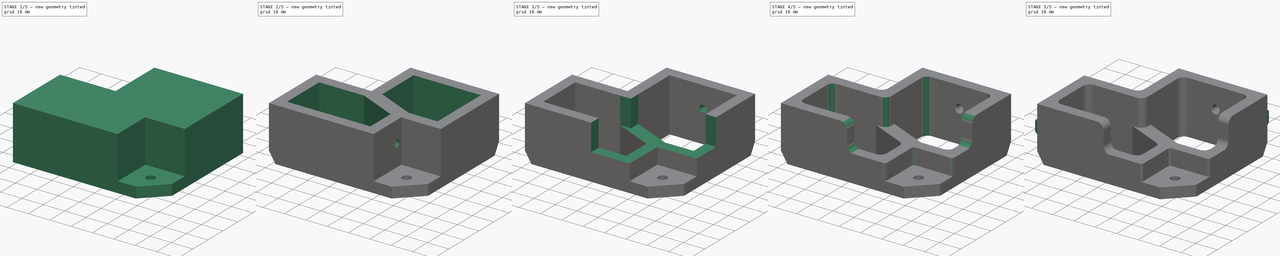
[diagram: build sequence overview — one tinted view per stage of 5, left to right]
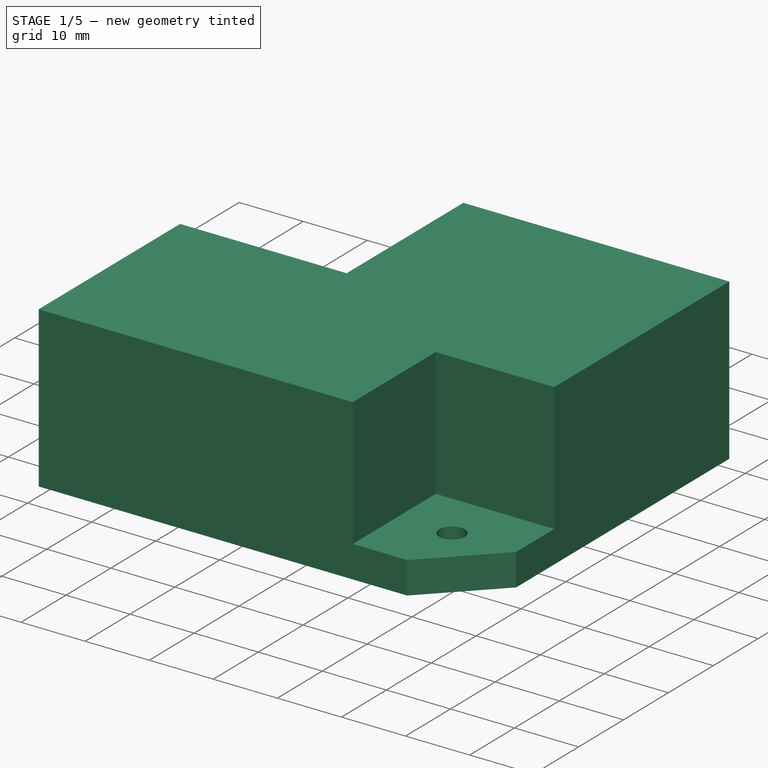
[diagram: stage 1 of 5 — iso view after this stage's code; geometry added in this stage tinted green]
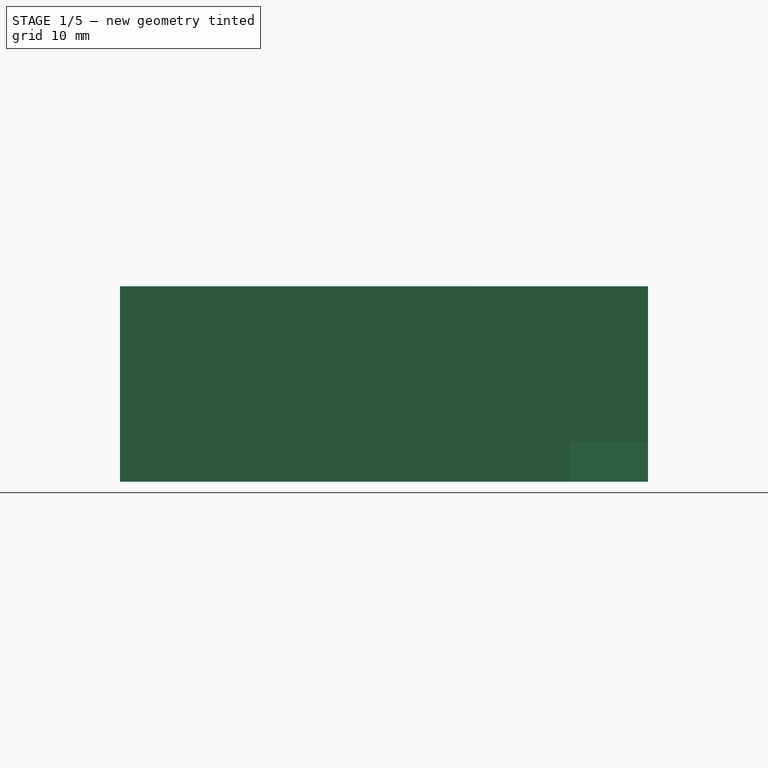
[diagram: stage 1 of 5 — front view after this stage's code; geometry added in this stage tinted green]
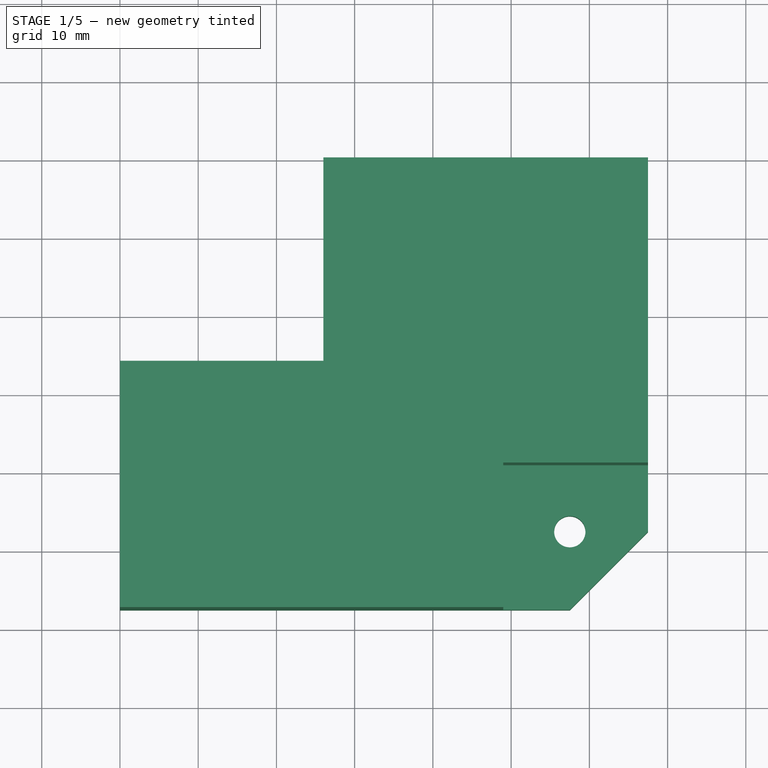
[diagram: stage 1 of 5 — top view after this stage's code; geometry added in this stage tinted green]
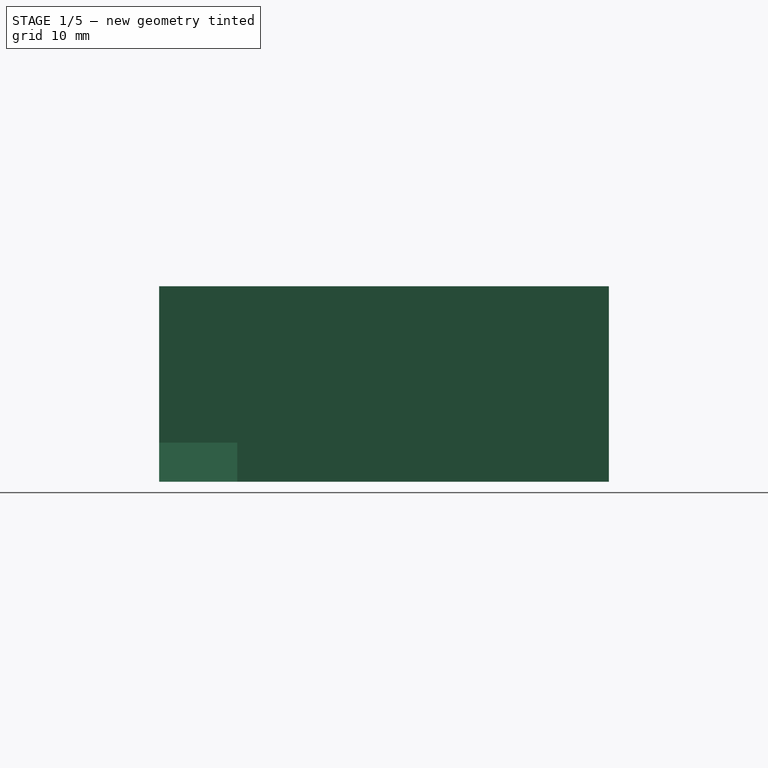
[diagram: stage 1 of 5 — right view after this stage's code; geometry added in this stage tinted green]
FCSTD DOCUMENT  (FreeCAD 0.19R24366 (Git))
Label: bed-fan-mounter-2020-250
License: All rights reserved
LicenseURL: http://en.wikipedia.org/wiki/All_rights_reserved
objects: Sketcher::SketchObject×11, PartDesign::Pocket×8, PartDesign::Pad×3, PartDesign::Chamfer×3, PartDesign::Fillet×3, PartDesign::Body×1
note: 46 computed .brp shape members not serialized (recipe doc carries the construction recipe); baked Part::Feature solids carry a one-line shape summary decoded from their .brp

FEATURE [Sketcher::SketchObject] Sketch
  FullyConstrained = true
  MapMode = 5
  Support = -> [XY_Plane]
  sketch-geometry (7):
    g0: LineSegment StartX=0 StartY=-26 StartZ=0 EndX=26 EndY=-26 EndZ=0
    g1: LineSegment StartX=26 StartY=-26 StartZ=0 EndX=26 EndY=0 EndZ=0
    g2: LineSegment StartX=26 StartY=0 StartZ=0 EndX=67.5 EndY=0 EndZ=0
    g3: LineSegment StartX=67.5 StartY=0 StartZ=0 EndX=67.5 EndY=-57.5 EndZ=0
    g4: LineSegment StartX=67.5 StartY=-57.5 StartZ=0 EndX=0 EndY=-57.5 EndZ=0
    g5: LineSegment StartX=0 StartY=-57.5 StartZ=0 EndX=0 EndY=-26 EndZ=0
    g6: Circle CenterX=57.5 CenterY=-47.5 CenterZ=0 NormalX=0 NormalY=0 NormalZ=1 AngleXU=0 Radius=2
  constraints (21):
    c: PointOnObject(g0,g-2)
    c: Horizontal(g0)
    c: Coincident(g0,g1)
    c: PointOnObject(g1,g-1)
    c: Vertical(g1)
    c: Coincident(g1,g2)
    c: PointOnObject(g2,g-1)
    c: Coincident(g2,g3)
    c: Vertical(g3)
    c: Coincident(g3,g4)
    c: PointOnObject(g4,g-2)
    c: Horizontal(g4)
    c: Coincident(g4,g5)
    c: Coincident(g5,g0)
    c: DistanceX(g0,g0) = 26
    c: DistanceY(g1,g1) = 26
    c: DistanceX(g-1,g6) = 57.5
    c: DistanceY(g6,g-1) = 47.5
    c: Radius(g6) = 2
    c: DistanceX(g6,g3) = 10
    c: DistanceY(g3,g6) = 10
FEATURE [PartDesign::Pad] Pad
  Direction = (1,1,1)
  Length = 25
  Length2 = 100
  Profile = -> Sketch
  Type = 0
FEATURE [Sketcher::SketchObject] Sketch001
  ExternalGeometry = -> [Pad]
  FullyConstrained = true
  MapMode = 5
  Placement = pos=(0,0,25) rot=(0,0,1;0rad)
  Support = -> [Pad]
  sketch-geometry (4):
    g0: LineSegment StartX=67.5 StartY=-57.5 StartZ=0 EndX=49 EndY=-57.5 EndZ=0
    g1: LineSegment StartX=49 StartY=-57.5 StartZ=0 EndX=49 EndY=-39 EndZ=0
    g2: LineSegment StartX=49 StartY=-39 StartZ=0 EndX=67.5 EndY=-39 EndZ=0
    g3: LineSegment StartX=67.5 StartY=-39 StartZ=0 EndX=67.5 EndY=-57.5 EndZ=0
  constraints (11):
    c: Coincident(g0,g1)
    c: Coincident(g1,g2)
    c: Coincident(g2,g3)
    c: Coincident(g3,g0)
    c: Horizontal(g0)
    c: Horizontal(g2)
    c: Vertical(g1)
    c: Vertical(g3)
    c: Coincident(g0,g-3)
    c: DistanceY(g-4,g1) = 8.5
    c: DistanceX(g1,g-4) = 8.5
FEATURE [PartDesign::Pocket] Pocket
  BaseFeature = -> Pad
  Length = 20
  Length2 = 100
  Profile = -> Sketch001
  Type = 0
FEATURE [PartDesign::Chamfer] Chamfer
  Angle = 45
  Base = -> Pocket [Edge22]
  BaseFeature = -> Pocket
  ChamferType = 0
  FlipDirection = false
  Size = 10
  Size2 = 1
  SupportTransform = false
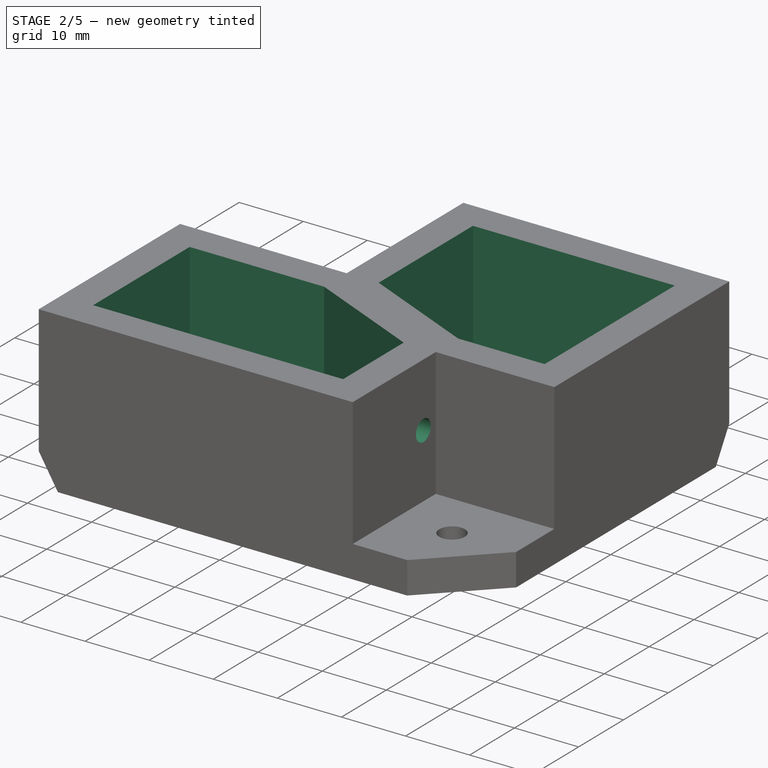
[diagram: stage 2 of 5 — iso view after this stage's code; geometry added in this stage tinted green]
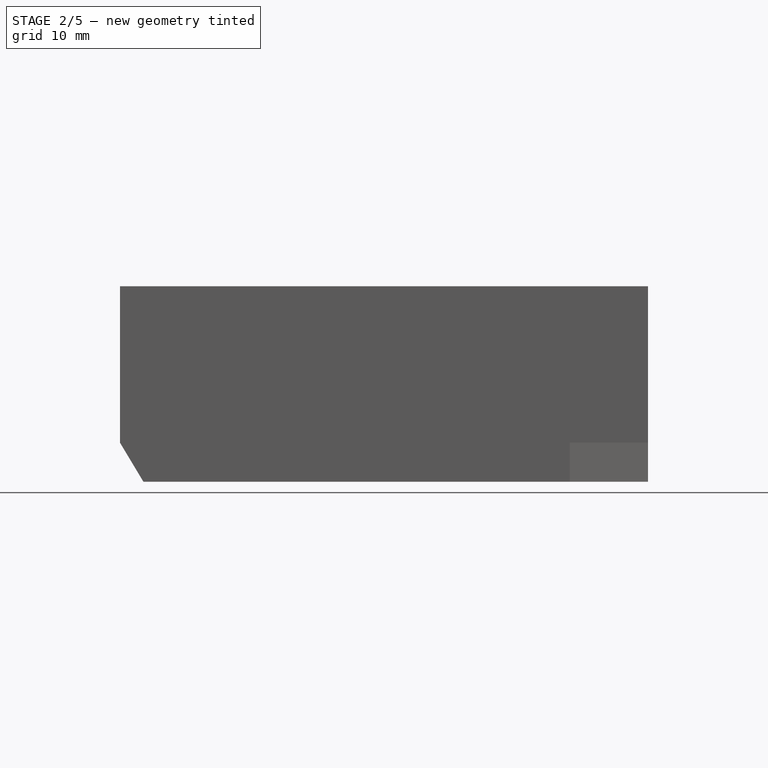
[diagram: stage 2 of 5 — front view after this stage's code; geometry added in this stage tinted green]
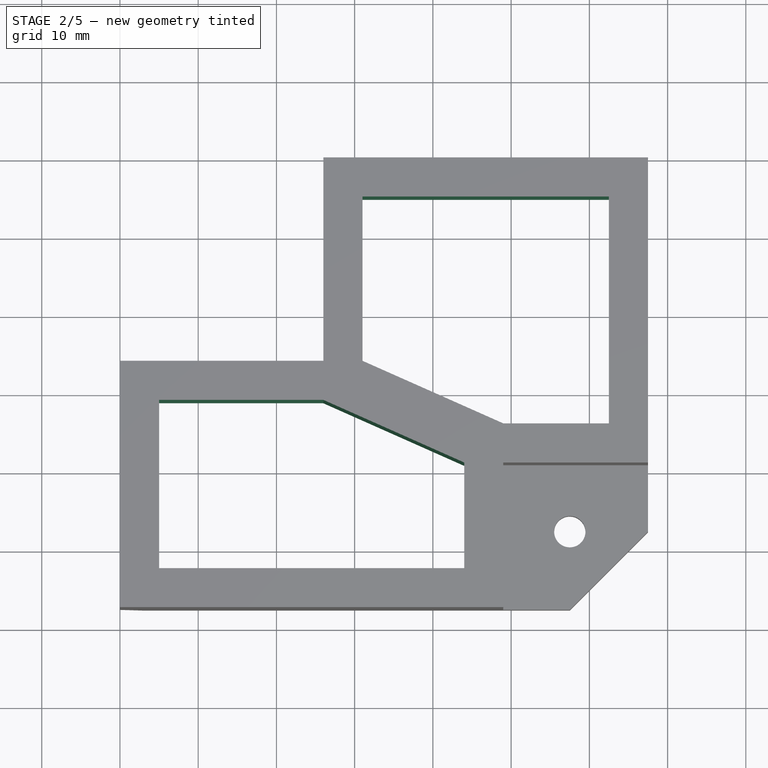
[diagram: stage 2 of 5 — top view after this stage's code; geometry added in this stage tinted green]
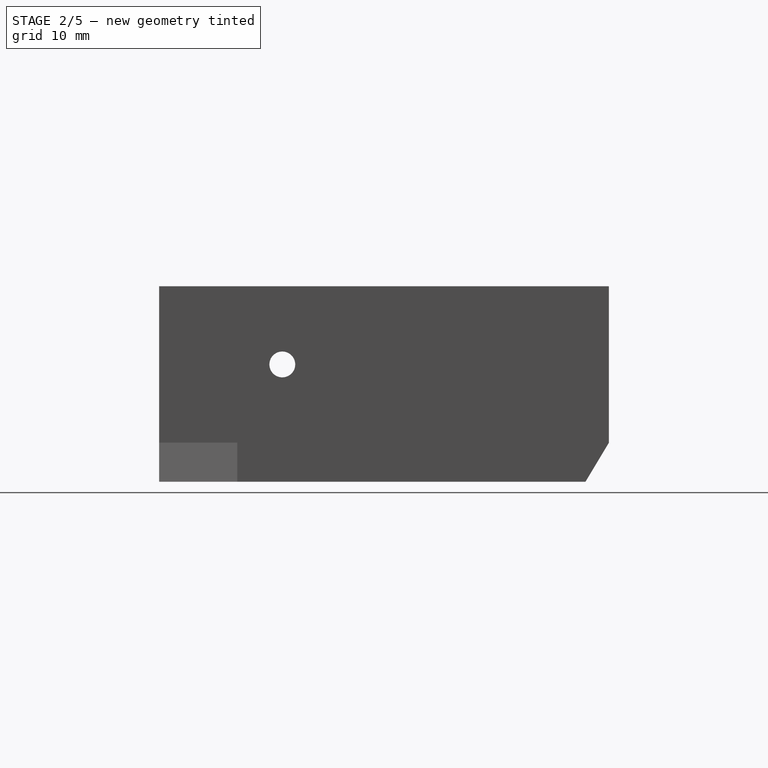
[diagram: stage 2 of 5 — right view after this stage's code; geometry added in this stage tinted green]
FEATURE [Sketcher::SketchObject] Sketch002
  FullyConstrained = true
  MapMode = 5
  Placement = pos=(0,-57.5,0) rot=(1,0,0;1.5708rad)
  Support = -> [Chamfer]
  sketch-geometry (3):
    g0: LineSegment StartX=0 StartY=5 StartZ=0 EndX=3 EndY=0 EndZ=0
    g1: LineSegment StartX=3 StartY=0 StartZ=0 EndX=0 EndY=0 EndZ=0
    g2: LineSegment StartX=0 StartY=0 StartZ=0 EndX=0 EndY=5 EndZ=0
  constraints (8):
    c: PointOnObject(g0,g-2)
    c: PointOnObject(g0,g-1)
    c: Coincident(g0,g1)
    c: Coincident(g1,g-1)
    c: Coincident(g1,g2)
    c: Coincident(g2,g0)
    c: DistanceY(g2,g2) = 5
    c: DistanceX(g1,g1) = 3
FEATURE [PartDesign::Pocket] Pocket001
  BaseFeature = -> Chamfer
  Length = 5
  Length2 = 100
  Profile = -> Sketch002
  Type = 1
FEATURE [Sketcher::SketchObject] Sketch003
  FullyConstrained = true
  MapMode = 5
  Placement = pos=(67.5,0,0) rot=(0.57735,0.57735,0.57735;2.0944rad)
  Support = -> [Pocket001]
  sketch-geometry (3):
    g0: LineSegment StartX=0 StartY=5 StartZ=0 EndX=-3 EndY=0 EndZ=0
    g1: LineSegment StartX=-3 StartY=0 StartZ=0 EndX=0 EndY=0 EndZ=0
    g2: LineSegment StartX=0 StartY=0 StartZ=0 EndX=0 EndY=5 EndZ=0
  constraints (8):
    c: PointOnObject(g0,g-2)
    c: PointOnObject(g0,g-1)
    c: Coincident(g0,g1)
    c: Coincident(g1,g-1)
    c: Coincident(g1,g2)
    c: Coincident(g2,g0)
    c: DistanceY(g2,g2) = 5
    c: DistanceX(g1,g1) = 3
FEATURE [PartDesign::Pocket] Pocket002
  BaseFeature = -> Pocket001
  Length = 5
  Length2 = 100
  Profile = -> Sketch003
  Type = 1
FEATURE [Sketcher::SketchObject] Sketch004
  ExternalGeometry = -> [Pocket002]
  FullyConstrained = true
  MapMode = 5
  Placement = pos=(0,0,25) rot=(0,0,1;0rad)
  Support = -> [Pocket002]
  sketch-geometry (10):
    g0: LineSegment StartX=5 StartY=-31 StartZ=0 EndX=5 EndY=-52.5 EndZ=0
    g1: LineSegment StartX=5 StartY=-52.5 StartZ=0 EndX=44 EndY=-52.5 EndZ=0
    g2: LineSegment StartX=44 StartY=-52.5 StartZ=0 EndX=44 EndY=-39 EndZ=0
    g3: LineSegment StartX=44 StartY=-39 StartZ=0 EndX=26 EndY=-31 EndZ=0
    g4: LineSegment StartX=26 StartY=-31 StartZ=0 EndX=5 EndY=-31 EndZ=0
    g5: LineSegment StartX=31 StartY=-26 StartZ=0 EndX=49 EndY=-34 EndZ=0
    g6: LineSegment StartX=49 StartY=-34 StartZ=0 EndX=62.5 EndY=-34 EndZ=0
    g7: LineSegment StartX=62.5 StartY=-34 StartZ=0 EndX=62.5 EndY=-5 EndZ=0
    g8: LineSegment StartX=62.5 StartY=-5 StartZ=0 EndX=31 EndY=-5 EndZ=0
    g9: LineSegment StartX=31 StartY=-5 StartZ=0 EndX=31 EndY=-26 EndZ=0
  constraints (30):
    c: Vertical(g0)
    c: Coincident(g0,g1)
    c: Horizontal(g1)
    c: Coincident(g1,g2)
    c: Vertical(g2)
    c: Coincident(g2,g3)
    c: Coincident(g3,g4)
    c: Coincident(g4,g0)
    c: Horizontal(g4)
    c: Coincident(g5,g6)
    c: Horizontal(g6)
    c: Coincident(g6,g7)
    c: Vertical(g7)
    c: Coincident(g7,g8)
    c: Horizontal(g8)
    c: Coincident(g8,g9)
    c: Coincident(g9,g5)
    c: Vertical(g9)
    c: DistanceX(g-7,g8) = 5
    c: DistanceX(g7,g-8) = 5
    c: DistanceX(g-3,g0) = 5
    c: DistanceX(g1,g-5) = 5
    c: DistanceY(g-4,g0) = 5
    c: DistanceY(g0,g-3) = 5
    c: DistanceY(g7,g-8) = 5
    c: DistanceY(g-8,g6) = 5
    c: Parallel(g3,g5)
    c: Horizontal(g2,g-6)
    c: Horizontal(g5,g-7)
    c: Vertical(g3,g-7)
FEATURE [PartDesign::Pocket] Pocket003
  BaseFeature = -> Pocket002
  Length = 5
  Length2 = 100
  Profile = -> Sketch004
  Type = 1
FEATURE [Sketcher::SketchObject] Sketch005
  ExternalGeometry = -> [Pocket003]
  FullyConstrained = true
  MapMode = 5
  Placement = pos=(0,0,0) rot=(0.57735,-0.57735,-0.57735;2.0944rad)
  Support = -> [Pocket003]
  sketch-geometry (1):
    g0: Circle CenterX=41.75 CenterY=15 CenterZ=0 NormalX=0 NormalY=0 NormalZ=1 AngleXU=0 Radius=1.65
  constraints (4):
    c: Radius(g0) = 1.65
    c: DistanceY(g0,g-4) = 10
    c: DistanceX(g-4,g-3) = 31.5
    c: DistanceX(g-4,g0) = 15.75
FEATURE [PartDesign::Pocket] Pocket004
  BaseFeature = -> Pocket003
  Length = 5
  Length2 = 100
  Profile = -> Sketch005
  Type = 1
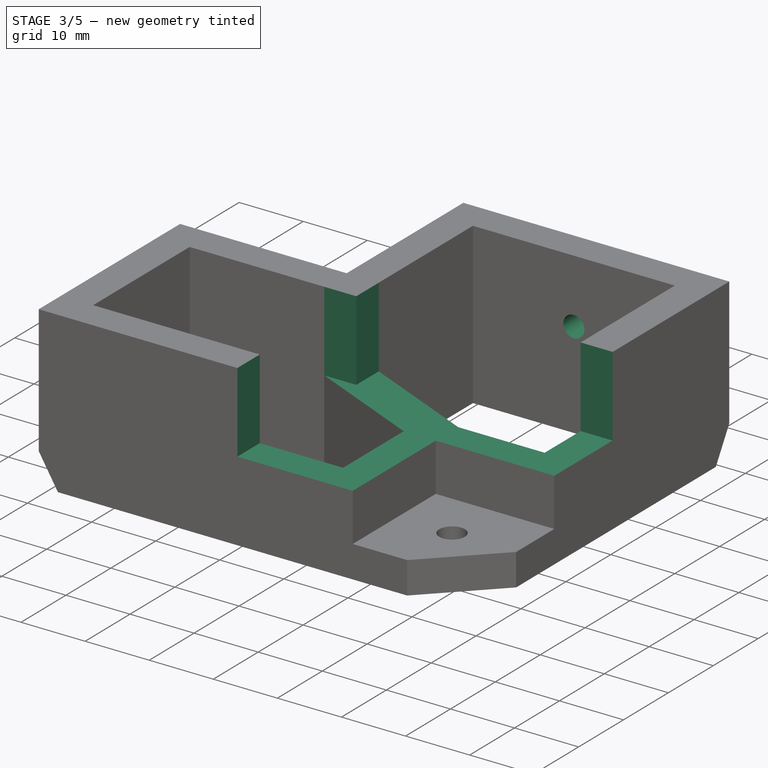
[diagram: stage 3 of 5 — iso view after this stage's code; geometry added in this stage tinted green]
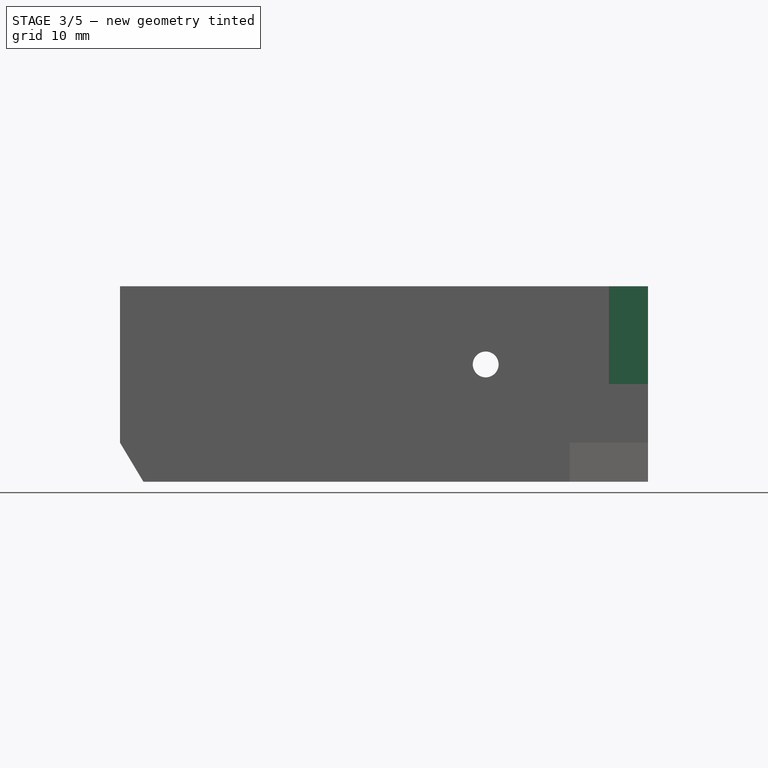
[diagram: stage 3 of 5 — front view after this stage's code; geometry added in this stage tinted green]
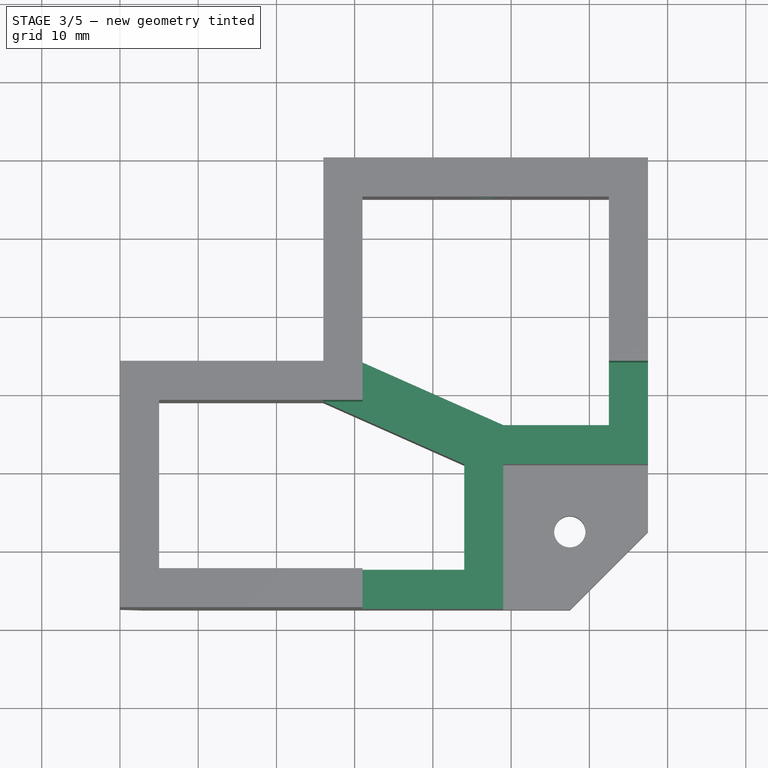
[diagram: stage 3 of 5 — top view after this stage's code; geometry added in this stage tinted green]
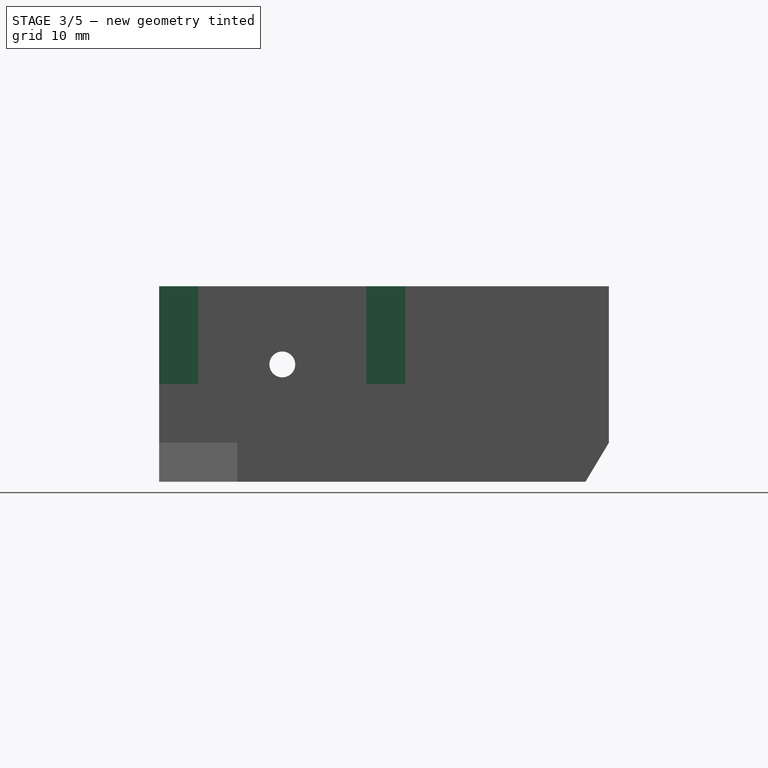
[diagram: stage 3 of 5 — right view after this stage's code; geometry added in this stage tinted green]
FEATURE [Sketcher::SketchObject] Sketch006
  ExternalGeometry = -> [Pocket004]
  FullyConstrained = true
  MapMode = 5
  Placement = pos=(0,0,0) rot=(0,0.707107,0.707107;3.14159rad)
  Support = -> [Pocket004]
  sketch-geometry (1):
    g0: Circle CenterX=-46.75 CenterY=15 CenterZ=0 NormalX=0 NormalY=0 NormalZ=1 AngleXU=0 Radius=1.65
  constraints (4):
    c: DistanceX(g-4,g-3) = 41.5
    c: DistanceX(g-4,g0) = 20.75
    c: DistanceY(g0,g-3) = 10
    c: Radius(g0) = 1.65
FEATURE [PartDesign::Pocket] Pocket005
  BaseFeature = -> Pocket004
  Length = 5
  Length2 = 100
  Profile = -> Sketch006
  Type = 1
FEATURE [Sketcher::SketchObject] Sketch007
  ExternalGeometry = -> [Pocket005]
  FullyConstrained = true
  MapMode = 5
  Placement = pos=(0,0,25) rot=(0,0,1;0rad)
  Support = -> [Pocket005]
  sketch-geometry (6):
    g0: GeomPoint X=46.75 Y=0 Z=0
    g1: GeomPoint X=0 Y=-41.75 Z=0
    g2: LineSegment StartX=31 StartY=-26 StartZ=0 EndX=67.5 EndY=-26 EndZ=0
    g3: LineSegment StartX=67.5 StartY=-26 StartZ=0 EndX=67.5 EndY=-57.5 EndZ=0
    g4: LineSegment StartX=67.5 StartY=-57.5 StartZ=0 EndX=31 EndY=-57.5 EndZ=0
    g5: LineSegment StartX=31 StartY=-57.5 StartZ=0 EndX=31 EndY=-26 EndZ=0
  constraints (16):
    c: PointOnObject(g0,g-1)
    c: PointOnObject(g1,g-2)
    c: DistanceY(g1,g-3) = 15.75
    c: DistanceX(g-4,g0) = 20.75
    c: Coincident(g2,g3)
    c: Coincident(g3,g4)
    c: Coincident(g4,g5)
    c: Coincident(g5,g2)
    c: Horizontal(g2)
    c: Horizontal(g4)
    c: Vertical(g3)
    c: Vertical(g5)
    c: Vertical(g-7,g2)
    c: Horizontal(g-8,g3)
    c: Vertical(g2,g-5)
    c: Horizontal(g2,g-4)
FEATURE [PartDesign::Pocket] Pocket006
  BaseFeature = -> Pocket005
  Length = 12.5
  Length2 = 100
  Profile = -> Sketch007
  Type = 0
FEATURE [Sketcher::SketchObject] Sketch008
  ExternalGeometry = -> [Pocket006]
  FullyConstrained = true
  MapMode = 5
  Placement = pos=(0,0,25) rot=(0,0,1;0rad)
  Support = -> [Pocket006]
  sketch-geometry (4):
    g0: LineSegment StartX=26 StartY=-31 StartZ=0 EndX=31 EndY=-31 EndZ=0
    g1: LineSegment StartX=31 StartY=-31 StartZ=0 EndX=31 EndY=-33.2222 EndZ=0
    g2: LineSegment StartX=31 StartY=-33.2222 StartZ=0 EndX=26 EndY=-33.2222 EndZ=0
    g3: LineSegment StartX=26 StartY=-33.2222 StartZ=0 EndX=26 EndY=-31 EndZ=0
  constraints (10):
    c: Coincident(g0,g1)
    c: Coincident(g1,g2)
    c: Coincident(g2,g3)
    c: Coincident(g3,g0)
    c: Horizontal(g0)
    c: Horizontal(g2)
    c: Vertical(g1)
    c: Vertical(g3)
    c: Coincident(g0,g-3)
    c: Coincident(g1,g-4)
FEATURE [PartDesign::Pocket] Pocket007
  BaseFeature = -> Pocket006
  Length = 0
  Length2 = 100
  Profile = -> Sketch008
  Refine = true
  Type = 3
  UpToFace = -> Pocket006 [Face23]
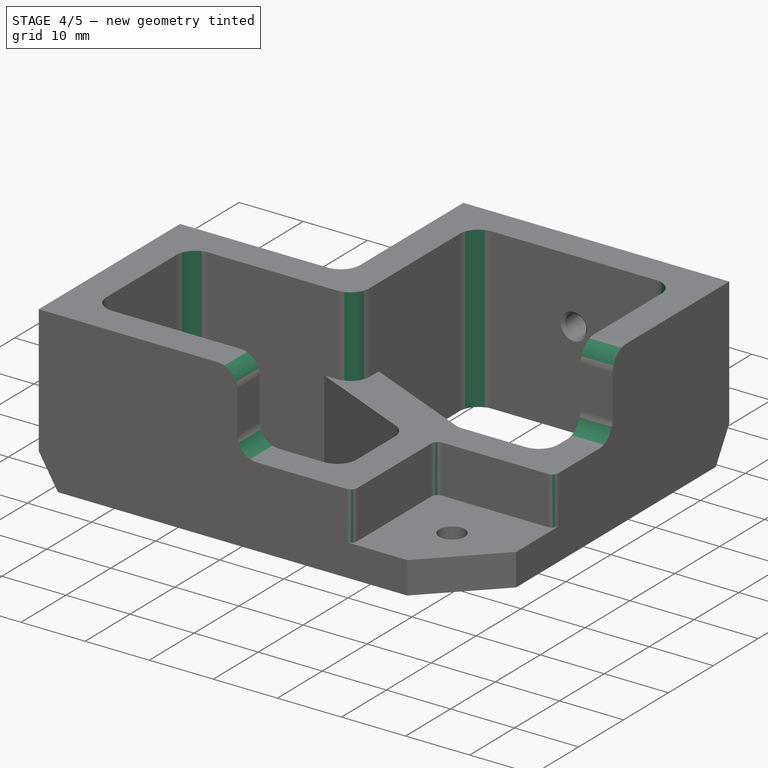
[diagram: stage 4 of 5 — iso view after this stage's code; geometry added in this stage tinted green]
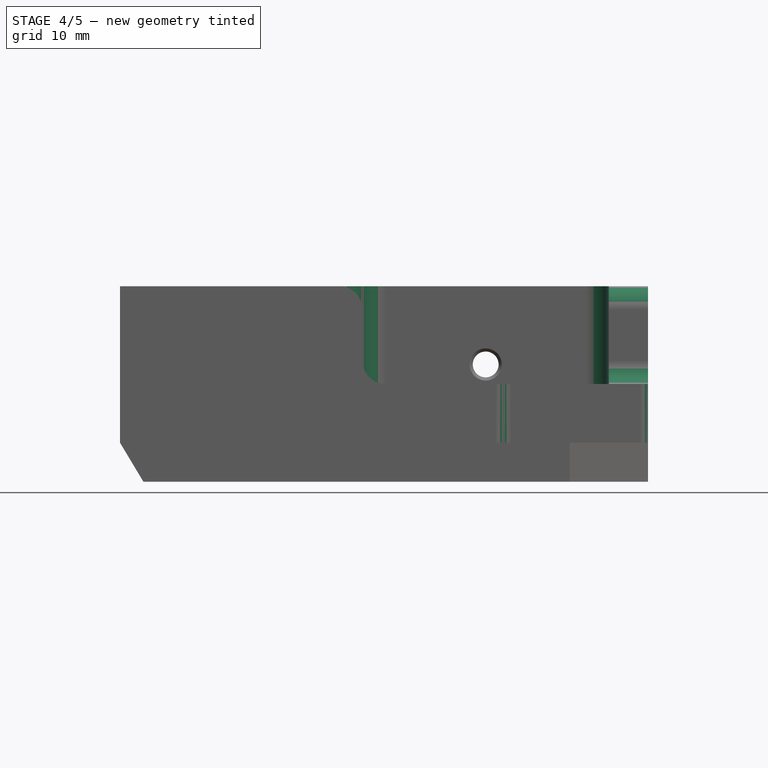
[diagram: stage 4 of 5 — front view after this stage's code; geometry added in this stage tinted green]
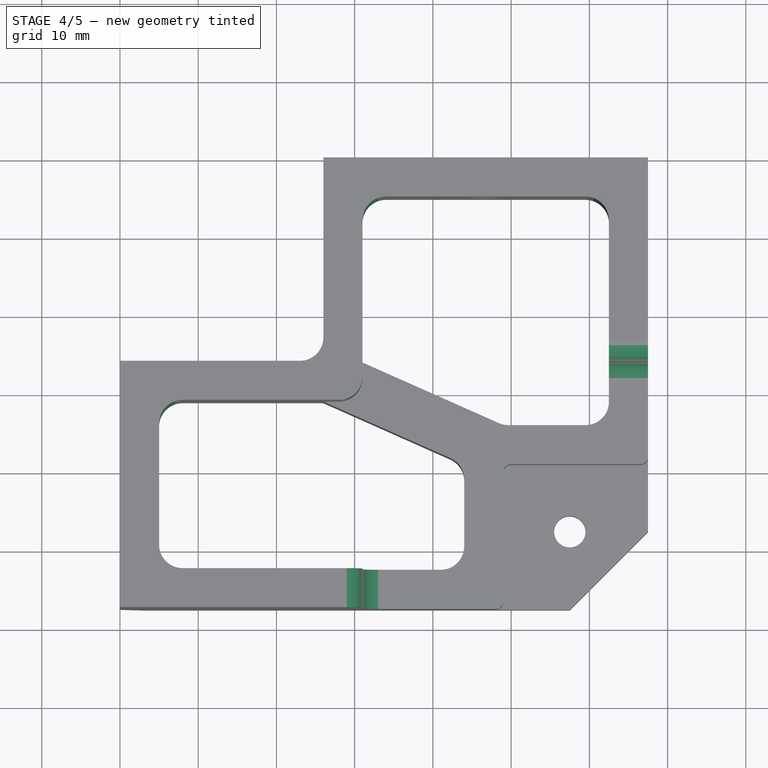
[diagram: stage 4 of 5 — top view after this stage's code; geometry added in this stage tinted green]
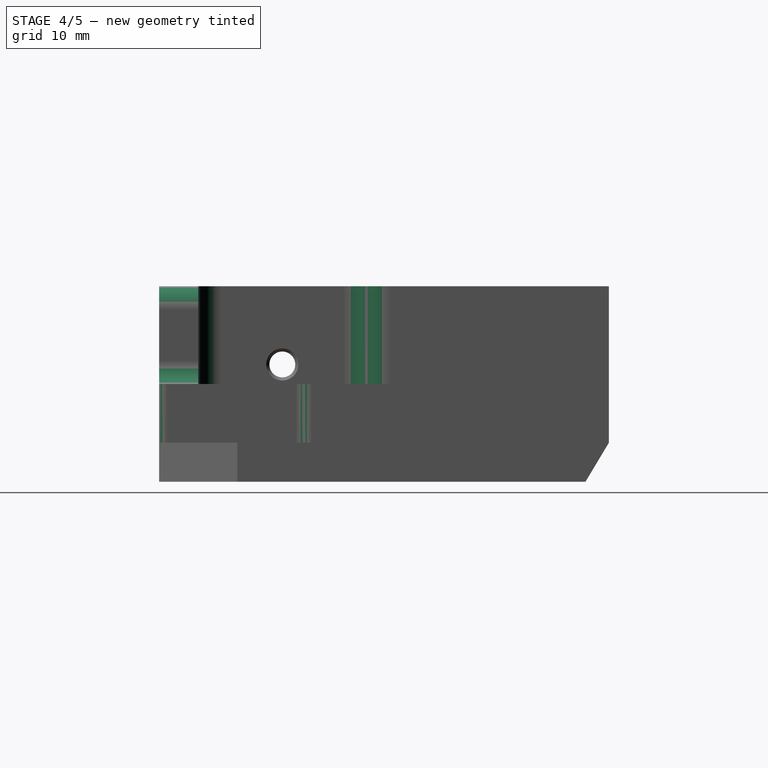
[diagram: stage 4 of 5 — right view after this stage's code; geometry added in this stage tinted green]
FEATURE [PartDesign::Fillet] Fillet
  Base = -> Pocket007 [Edge88,Edge87,Edge84,Edge86]
  BaseFeature = -> Pocket007
  Radius = 3
  Refine = true
  SupportTransform = false
FEATURE [PartDesign::Fillet] Fillet001
  Base = -> Fillet [Edge61,Edge89,Edge96,Edge85,Edge84,Edge81,Edge70,Edge64,Edge102,Edge95]
  BaseFeature = -> Fillet
  Radius = 3
  SupportTransform = false
FEATURE [PartDesign::Fillet] Fillet002
  Base = -> Fillet001 [Edge42,Edge121,Edge77]
  BaseFeature = -> Fillet001
  Radius = 1
  SupportTransform = false
FEATURE [PartDesign::Chamfer] Chamfer001
  Angle = 45
  Base = -> Fillet002 [Edge76,Edge138,Edge140,Edge131,Edge97]
  BaseFeature = -> Fillet002
  ChamferType = 0
  FlipDirection = false
  Size = 0.4
  Size2 = 1
  SupportTransform = false
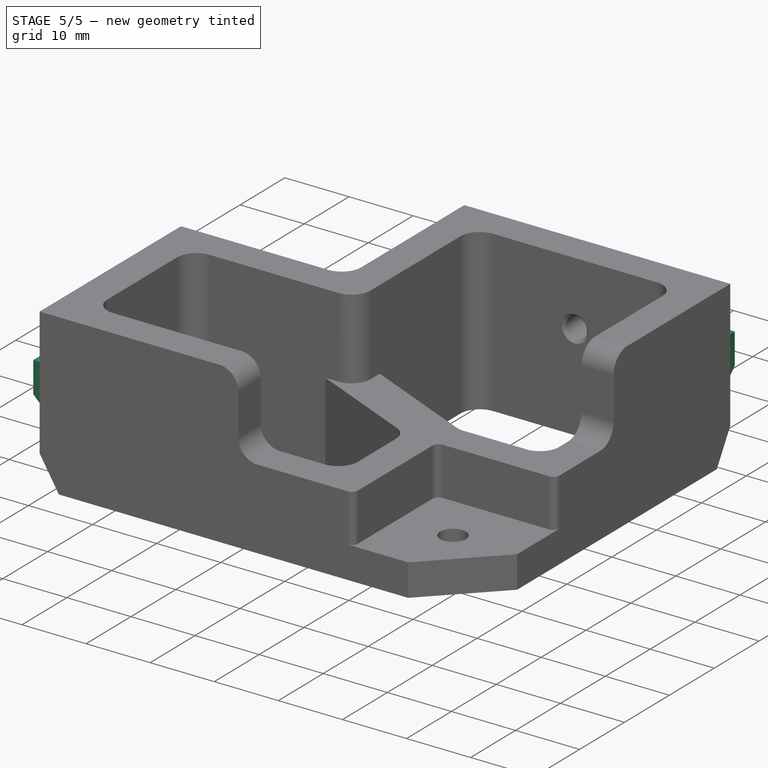
[diagram: stage 5 of 5 — iso view after this stage's code; geometry added in this stage tinted green]
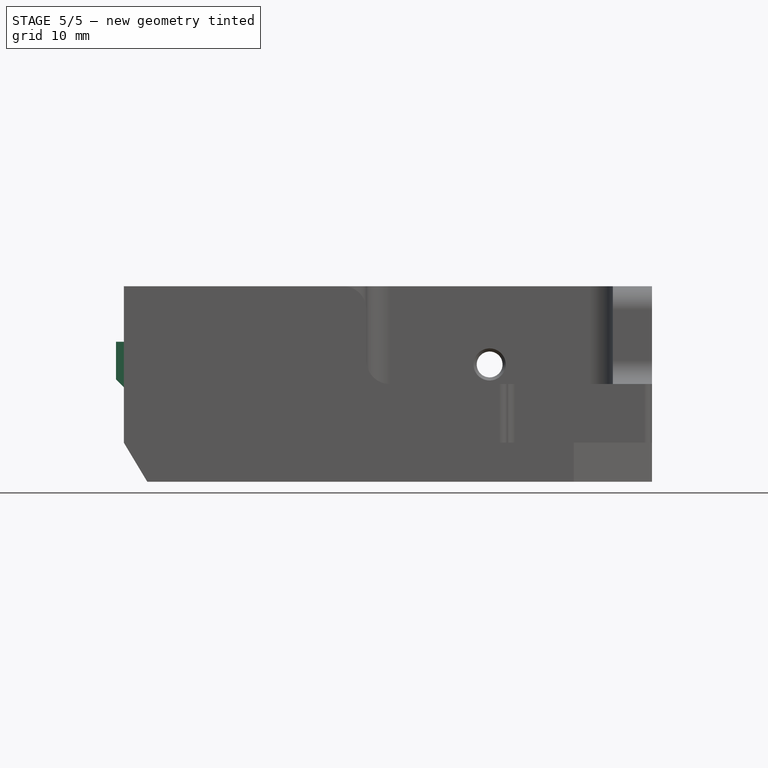
[diagram: stage 5 of 5 — front view after this stage's code; geometry added in this stage tinted green]
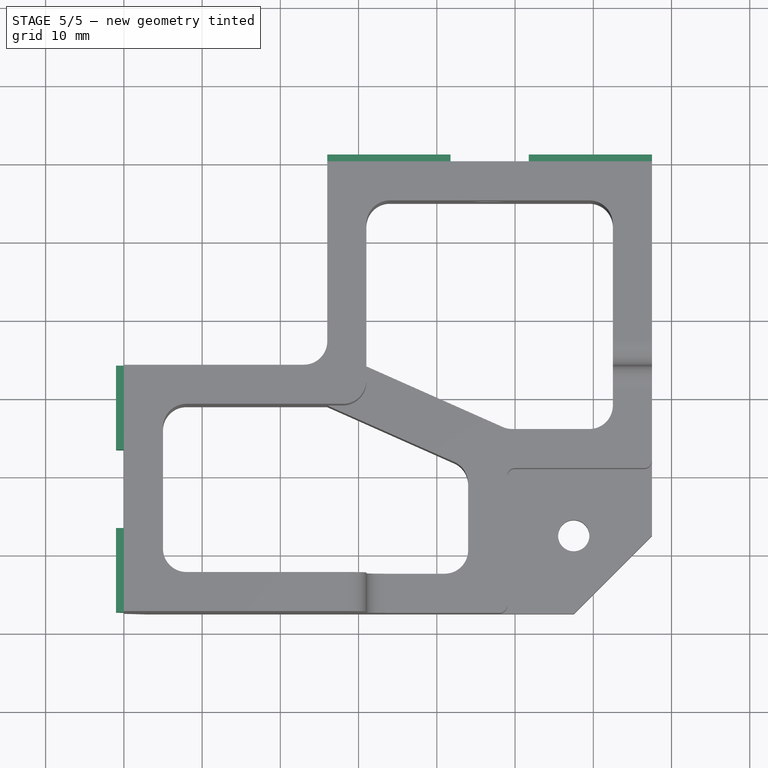
[diagram: stage 5 of 5 — top view after this stage's code; geometry added in this stage tinted green]
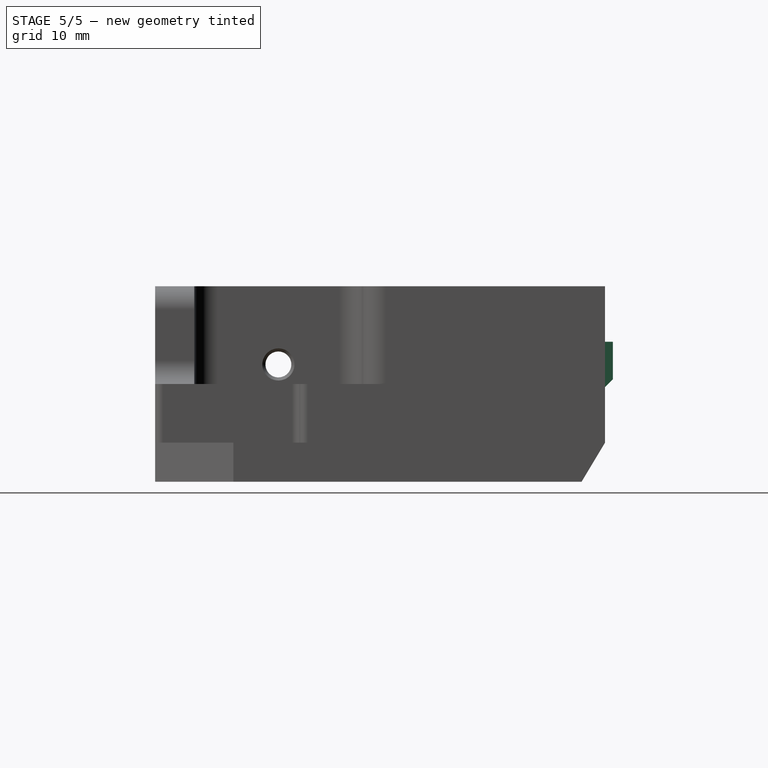
[diagram: stage 5 of 5 — right view after this stage's code; geometry added in this stage tinted green]
FEATURE [Sketcher::SketchObject] Sketch009
  ExternalGeometry = -> [Chamfer001]
  FullyConstrained = true
  MapMode = 5
  Placement = pos=(0,0,0) rot=(0.57735,-0.57735,-0.57735;2.0944rad)
  Support = -> [Chamfer001]
  sketch-geometry (8):
    g0: LineSegment StartX=26 StartY=17.9 StartZ=0 EndX=36.75 EndY=17.9 EndZ=0
    g1: LineSegment StartX=36.75 StartY=17.9 StartZ=0 EndX=36.75 EndY=12.1 EndZ=0
    g2: LineSegment StartX=36.75 StartY=12.1 StartZ=0 EndX=26 EndY=12.1 EndZ=0
    g3: LineSegment StartX=26 StartY=12.1 StartZ=0 EndX=26 EndY=17.9 EndZ=0
    g4: LineSegment StartX=57.5 StartY=17.9 StartZ=0 EndX=46.75 EndY=17.9 EndZ=0
    g5: LineSegment StartX=46.75 StartY=17.9 StartZ=0 EndX=46.75 EndY=12.1 EndZ=0
    g6: LineSegment StartX=46.75 StartY=12.1 StartZ=0 EndX=57.5 EndY=12.1 EndZ=0
    g7: LineSegment StartX=57.5 StartY=12.1 StartZ=0 EndX=57.5 EndY=17.9 EndZ=0
  constraints (24):
    c: Coincident(g0,g1)
    c: Coincident(g1,g2)
    c: Coincident(g2,g3)
    c: Coincident(g3,g0)
    c: Horizontal(g0)
    c: Horizontal(g2)
    c: Vertical(g1)
    c: Vertical(g3)
    c: PointOnObject(g0,g-5)
    c: Coincident(g4,g5)
    c: Coincident(g5,g6)
    c: Coincident(g6,g7)
    c: Coincident(g7,g4)
    c: Horizontal(g4)
    c: Horizontal(g6)
    c: Vertical(g5)
    c: Vertical(g7)
    c: PointOnObject(g4,g-3)
    c: Horizontal(g0,g4)
    c: Horizontal(g1,g5)
    c: DistanceY(g7,g7) = 5.8
    c: DistanceY(g-4,g4) = 2.9
    c: DistanceX(g0,g-4) = 5
    c: DistanceX(g-4,g4) = 5
FEATURE [PartDesign::Pad] Pad001
  BaseFeature = -> Chamfer001
  Direction = (1,1,1)
  Length = 1
  Length2 = 100
  Profile = -> Sketch009
  Type = 0
FEATURE [Sketcher::SketchObject] Sketch010
  ExternalGeometry = -> [Pad001]
  FullyConstrained = true
  MapMode = 5
  Placement = pos=(0,0,0) rot=(0,0.707107,0.707107;3.14159rad)
  Support = -> [Pad001]
  sketch-geometry (8):
    g0: LineSegment StartX=-67.5 StartY=17.9 StartZ=0 EndX=-51.75 EndY=17.9 EndZ=0
    g1: LineSegment StartX=-51.75 StartY=17.9 StartZ=0 EndX=-51.75 EndY=12.1 EndZ=0
    g2: LineSegment StartX=-51.75 StartY=12.1 StartZ=0 EndX=-67.5 EndY=12.1 EndZ=0
    g3: LineSegment StartX=-67.5 StartY=12.1 StartZ=0 EndX=-67.5 EndY=17.9 EndZ=0
    g4: LineSegment StartX=-26 StartY=17.9 StartZ=0 EndX=-41.75 EndY=17.9 EndZ=0
    g5: LineSegment StartX=-41.75 StartY=17.9 StartZ=0 EndX=-41.75 EndY=12.1 EndZ=0
    g6: LineSegment StartX=-41.75 StartY=12.1 StartZ=0 EndX=-26 EndY=12.1 EndZ=0
    g7: LineSegment StartX=-26 StartY=12.1 StartZ=0 EndX=-26 EndY=17.9 EndZ=0
  constraints (24):
    c: Coincident(g0,g1)
    c: Coincident(g1,g2)
    c: Coincident(g2,g3)
    c: Coincident(g3,g0)
    c: Horizontal(g0)
    c: Horizontal(g2)
    c: Vertical(g1)
    c: Vertical(g3)
    c: PointOnObject(g0,g-3)
    c: Coincident(g4,g5)
    c: Coincident(g5,g6)
    c: Coincident(g6,g7)
    c: Coincident(g7,g4)
    c: Horizontal(g4)
    c: Horizontal(g6)
    c: Vertical(g5)
    c: Vertical(g7)
    c: PointOnObject(g4,g-4)
    c: Horizontal(g0,g4)
    c: Horizontal(g1,g5)
    c: DistanceY(g1,g1) = 5.8
    c: DistanceY(g-5,g0) = 2.9
    c: DistanceX(g0,g-5) = 5
    c: DistanceX(g-5,g4) = 5
FEATURE [PartDesign::Pad] Pad002
  BaseFeature = -> Pad001
  Direction = (1,1,1)
  Length = 1
  Length2 = 100
  Profile = -> Sketch010
  Type = 0
FEATURE [PartDesign::Chamfer] Chamfer002
  Angle = 45
  Base = -> Pad002 [Edge179,Edge187,Edge191,Edge199]
  BaseFeature = -> Pad002
  ChamferType = 0
  FlipDirection = false
  Size = 0.99
  Size2 = 1
  SupportTransform = false
FEATURE [PartDesign::Body] Body
  Group = -> [Sketch,Pad,Sketch001,Pocket,Chamfer,Sketch002,Pocket001,Sketch003,Pocket002,Sketch004,Pocket003,Sketch005,Pocket004,Sketch006,Pocket005,Sketch007,Pocket006,Sketch008,Pocket007,Fillet,Fillet001,Fillet002,Chamfer001,Sketch009,Pad001,Sketch010,Pad002,Chamfer002]
  Origin = -> Origin
  Tip = -> Chamfer002
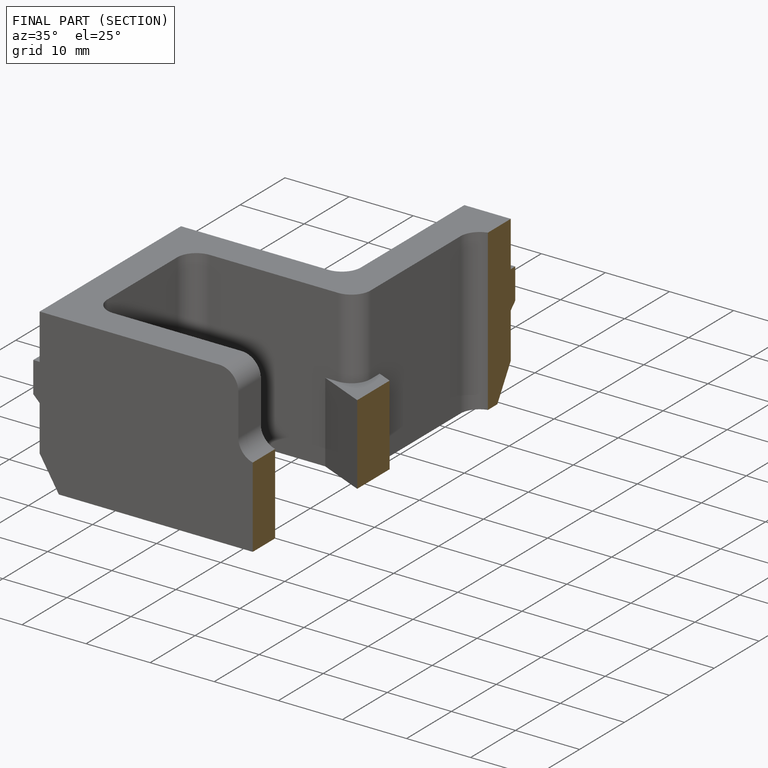
[diagram: finished part — half-section view (interior)]
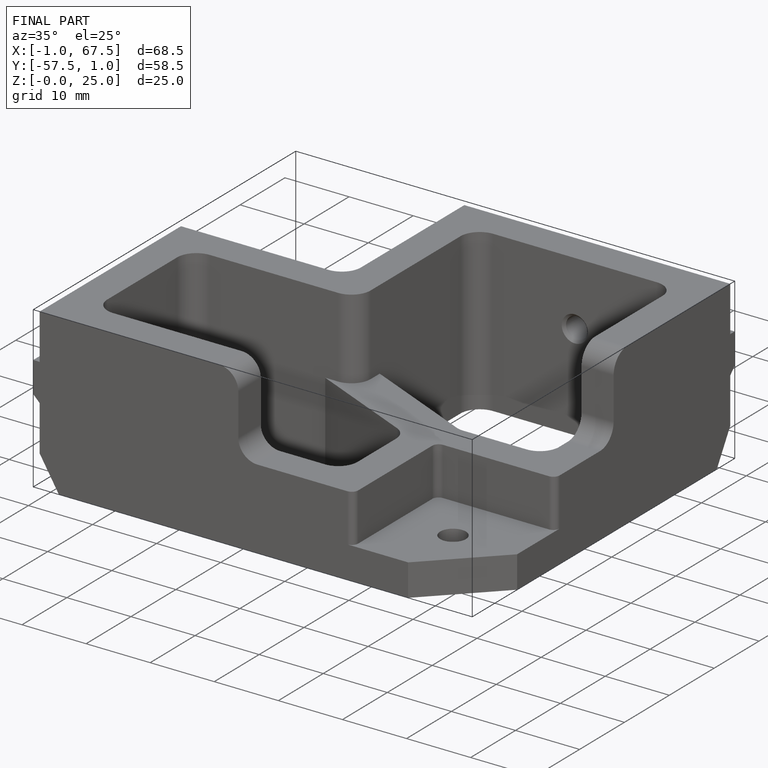
[diagram: finished part — iso view with bounding-box wireframe]
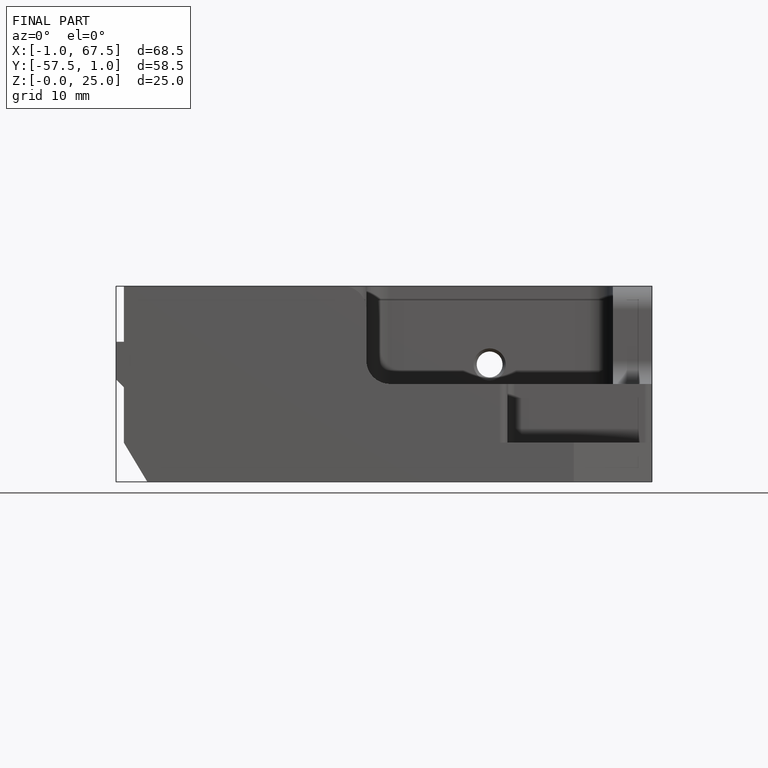
[diagram: finished part — front view with bounding-box wireframe]
